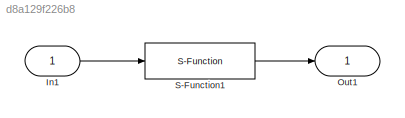
MODEL slx_d8a129f226b8
KIND model
BLOCK [Inport] In1 
  IconDisplay = Port number
BLOCK [Outport] Out1
  IconDisplay = Port number
BLOCK [S-Function] S-Function1
  EnableBusSupport = off
  FunctionName = SFun_trim_realmodel
  Ports = [1, 1]
LINE In1 :1 -> S-Function1:1
LINE S-Function1:1 -> Out1:1
